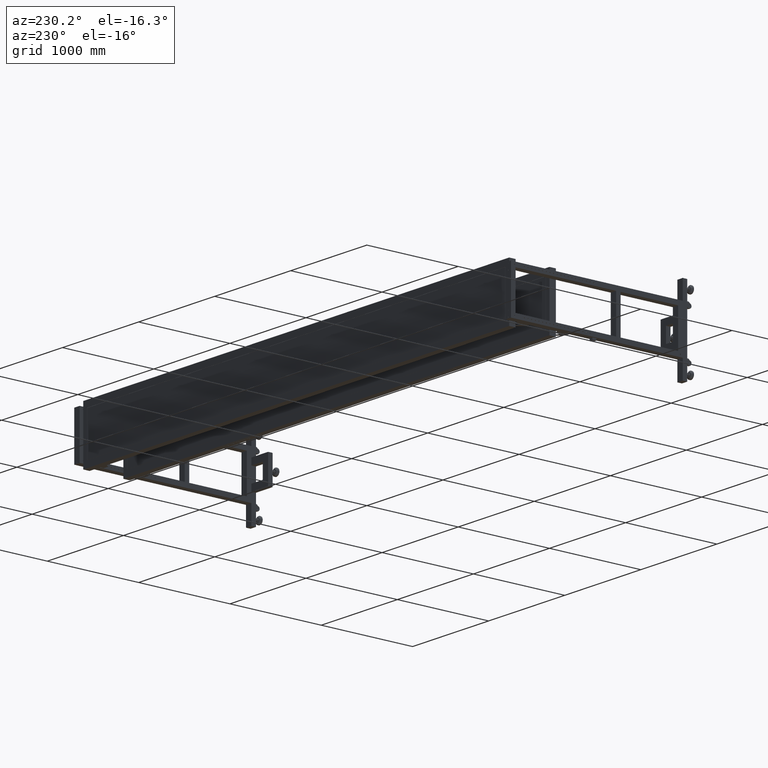
[diagram: clean part render]
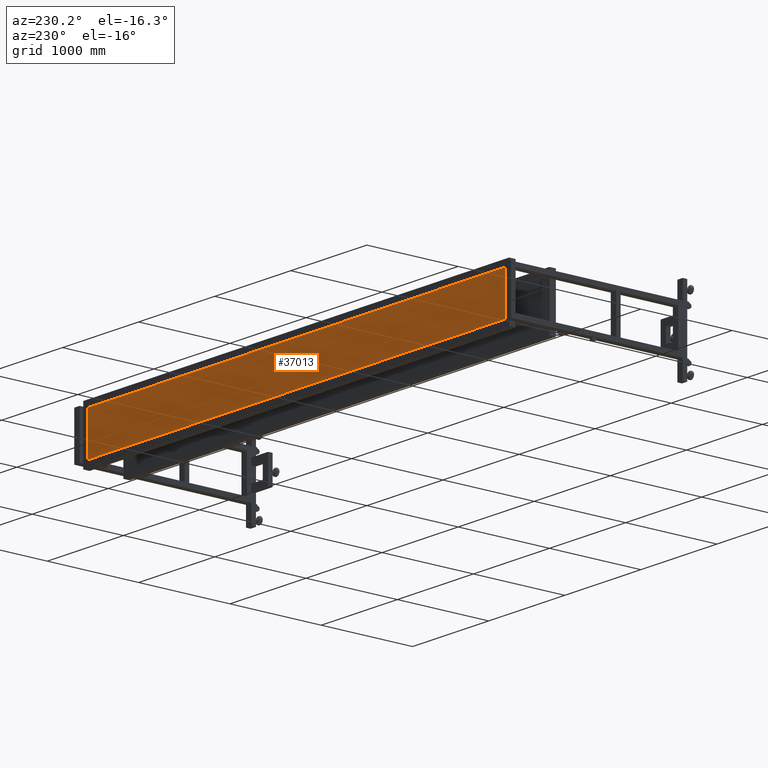
[diagram: same view with one face highlighted and labeled with its STEP entity id]
A machine part, auxiliary view. The second image highlights one B-rep face of the part: STEP entity #37013.
In plain terms, the highlighted planar face has unit normal (0, 1, 0).
Its self-contained STEP definition (entity closure, byte-faithful):
#2285 = CARTESIAN_POINT ( 'NONE',  ( 4280.317512562815864, 996.9410804020134265, 228.4900000000011744 ) ) ;
#9697 = EDGE_CURVE ( 'NONE', #58837, #41428, #12670, .T. ) ;
#12670 = LINE ( 'NONE', #49730, #45020 ) ;
#14573 = VECTOR ( 'NONE', #97403, 1000.000000000000000 ) ;
#15228 = VECTOR ( 'NONE', #78218, 1000.000000000000000 ) ;
#16048 = CARTESIAN_POINT ( 'NONE',  ( 1183.337512562814936, 996.9410804020136538, 228.4900000000011744 ) ) ;
#20256 = VERTEX_POINT ( 'NONE', #65859 ) ;
#21857 = ORIENTED_EDGE ( 'NONE', *, *, #9697, .F. ) ;
#21931 = VECTOR ( 'NONE', #42876, 1000.000000000000000 ) ;
#23005 = LINE ( 'NONE', #97167, #15228 ) ;
#24160 = PLANE ( 'NONE',  #26030 ) ;
#26030 = AXIS2_PLACEMENT_3D ( 'NONE', #52122, #43090, #33939 ) ;
#33355 = EDGE_CURVE ( 'NONE', #42176, #41428, #54311, .T. ) ;
#33711 = ORIENTED_EDGE ( 'NONE', *, *, #33355, .T. ) ;
#33939 = DIRECTION ( 'NONE',  ( -1.365026013856678580E-31, -1.000000000000000472E-15, 1.000000000000000000 ) ) ;
#37013 = ADVANCED_FACE ( 'NONE', ( #52713 ), #24160, .T. ) ;
#41428 = VERTEX_POINT ( 'NONE', #2285 ) ;
#41897 = DIRECTION ( 'NONE',  ( 3.178231158697546827E-31, -1.000000000000000472E-15, 1.000000000000000000 ) ) ;
#42176 = VERTEX_POINT ( 'NONE', #95934 ) ;
#42751 = LINE ( 'NONE', #105978, #14573 ) ;
#42876 = DIRECTION ( 'NONE',  ( 1.000000000000000000, -1.365026013856678295E-16, 0.000000000000000000 ) ) ;
#43090 = DIRECTION ( 'NONE',  ( 1.365026013856678295E-16, 1.000000000000000000, 1.000000000000000472E-15 ) ) ;
#45020 = VECTOR ( 'NONE', #41897, 1000.000000000000000 ) ;
#49730 = CARTESIAN_POINT ( 'NONE',  ( 4280.317512562815864, 996.9410804020138812, -228.4899999999988438 ) ) ;
#52122 = CARTESIAN_POINT ( 'NONE',  ( 2381.827512562814718, 996.9410804020136538, 1.167234175856414311E-12 ) ) ;
#52713 = FACE_OUTER_BOUND ( 'NONE', #97223, .T. ) ;
#54311 = LINE ( 'NONE', #16048, #21931 ) ;
#54776 = ORIENTED_EDGE ( 'NONE', *, *, #80156, .T. ) ;
#58837 = VERTEX_POINT ( 'NONE', #110015 ) ;
#65859 = CARTESIAN_POINT ( 'NONE',  ( -1216.662487437185973, 996.9410804020130854, -228.4899999999988438 ) ) ;
#78218 = DIRECTION ( 'NONE',  ( 0.000000000000000000, -1.000000000000000472E-15, 1.000000000000000000 ) ) ;
#80156 = EDGE_CURVE ( 'NONE', #20256, #42176, #23005, .T. ) ;
#80477 = ORIENTED_EDGE ( 'NONE', *, *, #100916, .T. ) ;
#95934 = CARTESIAN_POINT ( 'NONE',  ( -1216.662487437185973, 996.9410804020126307, 228.4900000000011744 ) ) ;
#97167 = CARTESIAN_POINT ( 'NONE',  ( -1216.662487437185973, 996.9410804020130854, -228.4899999999988438 ) ) ;
#97223 = EDGE_LOOP ( 'NONE', ( #80477, #54776, #33711, #21857 ) ) ;
#97403 = DIRECTION ( 'NONE',  ( -1.000000000000000000, 1.365026013856678295E-16, 0.000000000000000000 ) ) ;
#100916 = EDGE_CURVE ( 'NONE', #58837, #20256, #42751, .T. ) ;
#105978 = CARTESIAN_POINT ( 'NONE',  ( 3580.317512562814954, 996.9410804020136538, -228.4899999999988438 ) ) ;
#110015 = CARTESIAN_POINT ( 'NONE',  ( 4280.317512562815864, 996.9410804020138812, -228.4899999999988438 ) ) ;